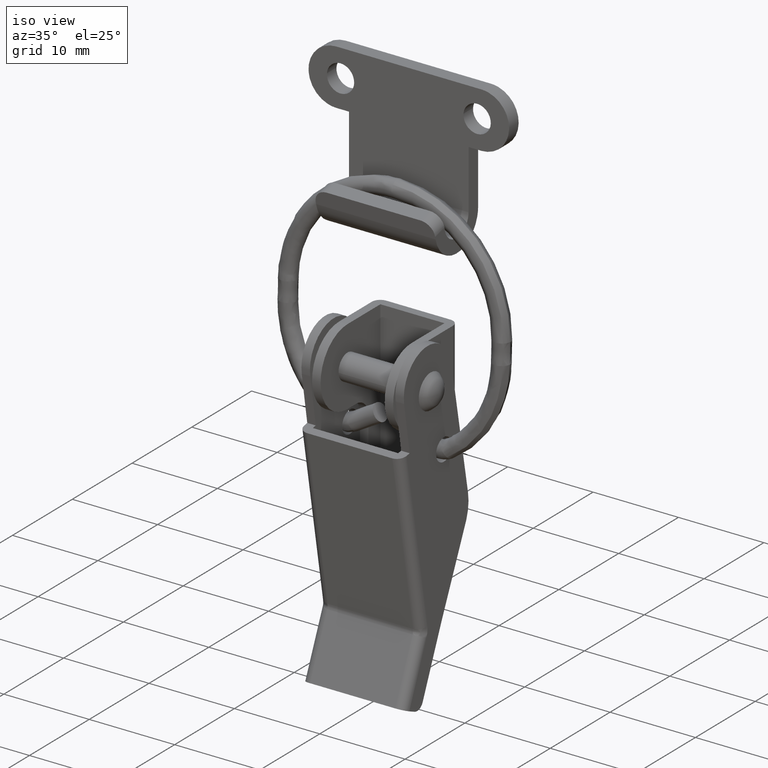
[diagram: clean part render]
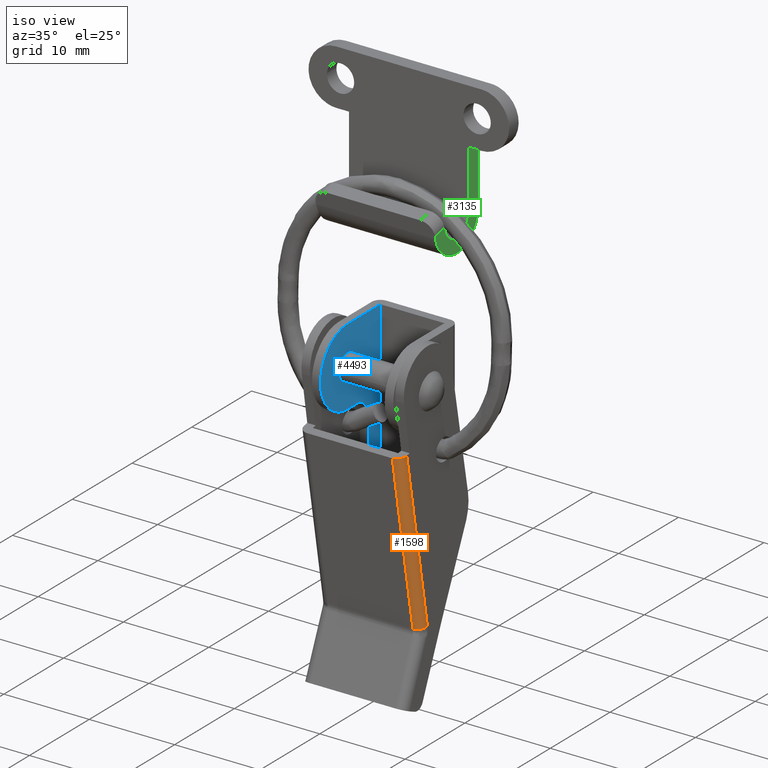
[diagram: same view with three faces highlighted in distinct colors, each labeled with its STEP entity id]
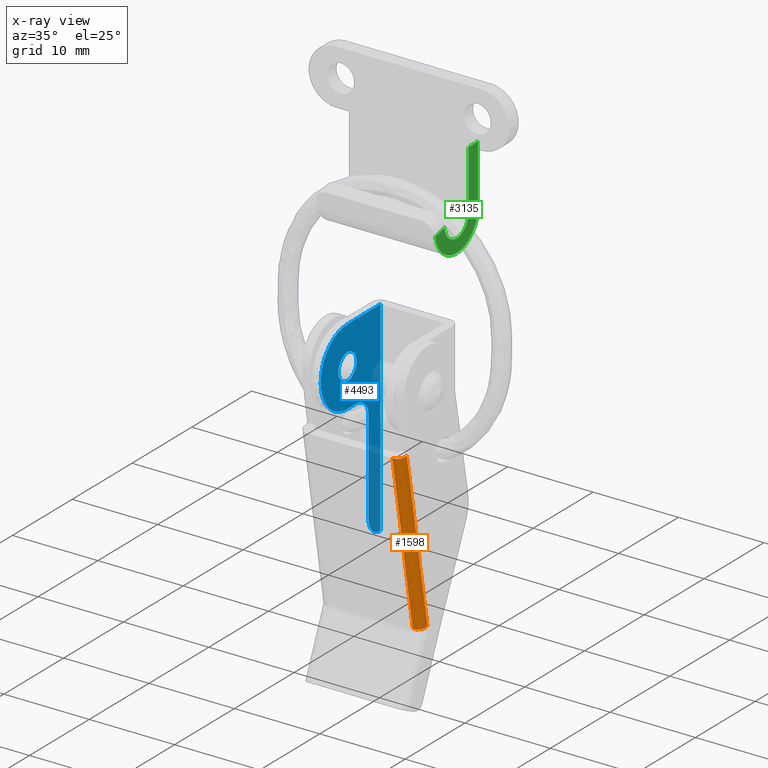
[diagram: x-ray of the same camera — body ghosted, the three highlighted faces saturated]
A machine part, iso view with three faces highlighted in distinct colors.
The next image is the same camera in x-ray (body ghosted, the three faces saturated) — at least one of them is partly hidden behind the body in this view.
Their STEP definitions:

[orange] entity #1598 — the highlighted face is a freeform B-spline surface patch.
#1371=CARTESIAN_POINT('',(5.0,-1.552382318426545,-24.836970145864349));
#1372=VERTEX_POINT('',#1371);
#1464=CARTESIAN_POINT('',(6.0,-0.567851664857188,-24.661757725693050));
#1465=VERTEX_POINT('',#1464);
#1479=CARTESIAN_POINT('',(6.0,-0.567851664857188,-24.661757725693050));
#1480=CARTESIAN_POINT('',(6.0,-1.552382318426544,-24.836970145864385));
#1481=CARTESIAN_POINT('',(5.0,-1.552382318426545,-24.836970145864381));
#1489=(BOUNDED_CURVE()B_SPLINE_CURVE(2,(#1479,#1480,#1481),.UNSPECIFIED.,.F.,.U.)CURVE()GEOMETRIC_REPRESENTATION_ITEM()QUASI_UNIFORM_CURVE()RATIONAL_B_SPLINE_CURVE((1.0,0.707106781186548,1.0))REPRESENTATION_ITEM(''));
#1490=EDGE_CURVE('',#1465,#1372,#1489,.T.);
#1554=CARTESIAN_POINT('',(4.973823051692122,-5.085853067973556,-4.980198930432920));
#1555=CARTESIAN_POINT('',(4.973823051692122,-1.463699741270437,-25.333327884306811));
#1556=CARTESIAN_POINT('',(6.074984800554713,-5.114241945562497,-4.985251169213163));
#1557=CARTESIAN_POINT('',(6.074984800554713,-1.492088618859376,-25.338380123087060));
#1558=CARTESIAN_POINT('',(5.997524479380808,-4.032427518454886,-4.792725600544890));
#1559=CARTESIAN_POINT('',(5.997524479380810,-0.410274191751764,-25.145854554418793));
#1567=(BOUNDED_SURFACE()B_SPLINE_SURFACE(1,2,((#1554,#1556,#1558),(#1555,#1557,#1559)),.UNSPECIFIED.,.F.,.F.,.U.)B_SPLINE_SURFACE_WITH_KNOTS((2,2),(3,3),(0.0,20.672925601742168),(0.0,0.994518632334191),.UNSPECIFIED.)GEOMETRIC_REPRESENTATION_ITEM()RATIONAL_B_SPLINE_SURFACE(((1.0,0.670944223154768,0.996392648609106),(1.0,0.670944223154768,0.996392648609106)))REPRESENTATION_ITEM('')SURFACE());
#1568=CARTESIAN_POINT('',(5.0,-5.0,-5.464568999999901));
#1569=VERTEX_POINT('',#1568);
#1570=CARTESIAN_POINT('',(6.0,-4.013499732734795,-5.300423974807511));
#1571=VERTEX_POINT('',#1570);
#1572=CARTESIAN_POINT('',(5.0,-4.999999999999999,-5.464568999999900));
#1573=CARTESIAN_POINT('',(6.000000000000001,-4.999999999999999,-5.464568999999901));
#1574=CARTESIAN_POINT('',(6.0,-4.013499732734795,-5.300423974807511));
#1582=(BOUNDED_CURVE()B_SPLINE_CURVE(2,(#1572,#1573,#1574),.UNSPECIFIED.,.F.,.U.)CURVE()GEOMETRIC_REPRESENTATION_ITEM()QUASI_UNIFORM_CURVE()RATIONAL_B_SPLINE_CURVE((1.0,0.707106781186548,1.0))REPRESENTATION_ITEM(''));
#1583=EDGE_CURVE('',#1569,#1571,#1582,.T.);
#1584=ORIENTED_EDGE('',*,*,#1583,.F.);
#1585=CARTESIAN_POINT('',(5.0,-1.552382318426545,-24.836970145864349));
#1586=CARTESIAN_POINT('',(5.0,-5.0,-5.464568999999901));
#1587=QUASI_UNIFORM_CURVE('',1,(#1585,#1586),.UNSPECIFIED.,.F.,.U.);
#1588=EDGE_CURVE('',#1372,#1569,#1587,.T.);
#1589=ORIENTED_EDGE('',*,*,#1588,.F.);
#1590=ORIENTED_EDGE('',*,*,#1490,.F.);
#1591=CARTESIAN_POINT('',(6.0,-4.013499732734795,-5.300423974807511));
#1592=CARTESIAN_POINT('',(6.0,-0.567851664857188,-24.661757725693050));
#1593=QUASI_UNIFORM_CURVE('',1,(#1591,#1592),.UNSPECIFIED.,.F.,.U.);
#1594=EDGE_CURVE('',#1571,#1465,#1593,.T.);
#1595=ORIENTED_EDGE('',*,*,#1594,.F.);
#1596=EDGE_LOOP('',(#1584,#1589,#1590,#1595));
#1597=FACE_OUTER_BOUND('',#1596,.T.);
#1598=ADVANCED_FACE('',(#1597),#1567,.T.);

[blue] entity #4493 — the highlighted face is a freeform B-spline surface patch.
#4113=CARTESIAN_POINT('',(-3.750000000000000,0.0,1.499999999999800));
#4114=VERTEX_POINT('',#4113);
#4115=CARTESIAN_POINT('',(-3.750000000000000,-1.495376000583315,0.117688643797308));
#4116=VERTEX_POINT('',#4115);
#4117=CARTESIAN_POINT('',(-3.750000000000000,0.0,1.499999999999800));
#4118=CARTESIAN_POINT('',(-3.750000000000000,-1.386585737104744,1.499999999999800));
#4119=CARTESIAN_POINT('',(-3.750000000000000,-1.495376000583315,0.117688643797308));
#4127=(BOUNDED_CURVE()B_SPLINE_CURVE(2,(#4117,#4118,#4119),.UNSPECIFIED.,.F.,.U.)B_SPLINE_CURVE_WITH_KNOTS((3,3),(0.0,0.236331300585638),.UNSPECIFIED.)CURVE()GEOMETRIC_REPRESENTATION_ITEM()RATIONAL_B_SPLINE_CURVE((1.0,0.723120658660411,0.969723356073462))REPRESENTATION_ITEM(''));
#4128=EDGE_CURVE('',#4114,#4116,#4127,.T.);
#4169=CARTESIAN_POINT('',(-3.750000000000000,1.495376000583315,-0.117688643797308));
#4170=VERTEX_POINT('',#4169);
#4176=CARTESIAN_POINT('',(-3.750000000000000,1.495376000583315,-0.117688643797308));
#4177=CARTESIAN_POINT('',(-3.750000000000000,1.499999999999800,-0.058935160718006));
#4178=CARTESIAN_POINT('',(-3.750000000000000,1.499999999999800,0.0));
#4179=CARTESIAN_POINT('',(-3.750000000000000,1.499999999999800,1.499999999999800));
#4180=CARTESIAN_POINT('',(-3.750000000000000,0.0,1.499999999999800));
#4188=(BOUNDED_CURVE()B_SPLINE_CURVE(2,(#4176,#4177,#4178,#4179,#4180),.UNSPECIFIED.,.F.,.U.)B_SPLINE_CURVE_WITH_KNOTS((3,2,3),(0.736331300585639,0.750000000000000,1.0),.UNSPECIFIED.)CURVE()GEOMETRIC_REPRESENTATION_ITEM()RATIONAL_B_SPLINE_CURVE((0.969723356073462,0.983986122526136,1.0,0.707106781186547,1.0))REPRESENTATION_ITEM(''));
#4189=EDGE_CURVE('',#4170,#4114,#4188,.T.);
#4212=CARTESIAN_POINT('',(-3.750000000000000,0.0,-1.499999999999800));
#4213=VERTEX_POINT('',#4212);
#4214=CARTESIAN_POINT('',(-3.750000000000000,-1.495376000583315,0.117688643797308));
#4215=CARTESIAN_POINT('',(-3.750000000000000,-1.499999999999800,0.058935160718007));
#4216=CARTESIAN_POINT('',(-3.750000000000000,-1.499999999999800,0.0));
#4217=CARTESIAN_POINT('',(-3.750000000000000,-1.499999999999800,-1.499999999999800));
#4218=CARTESIAN_POINT('',(-3.750000000000000,0.0,-1.499999999999800));
#4226=(BOUNDED_CURVE()B_SPLINE_CURVE(2,(#4214,#4215,#4216,#4217,#4218),.UNSPECIFIED.,.F.,.U.)B_SPLINE_CURVE_WITH_KNOTS((3,2,3),(0.236331300585639,0.250000000000000,0.500000000000000),.UNSPECIFIED.)CURVE()GEOMETRIC_REPRESENTATION_ITEM()RATIONAL_B_SPLINE_CURVE((0.969723356073462,0.983986122526136,1.0,0.707106781186547,1.0))REPRESENTATION_ITEM(''));
#4227=EDGE_CURVE('',#4116,#4213,#4226,.T.);
#4229=CARTESIAN_POINT('',(-3.750000000000000,0.0,-1.499999999999800));
#4230=CARTESIAN_POINT('',(-3.750000000000000,1.386585737104751,-1.499999999999801));
#4231=CARTESIAN_POINT('',(-3.750000000000000,1.495376000583315,-0.117688643797308));
#4239=(BOUNDED_CURVE()B_SPLINE_CURVE(2,(#4229,#4230,#4231),.UNSPECIFIED.,.F.,.U.)B_SPLINE_CURVE_WITH_KNOTS((3,3),(0.500000000000000,0.736331300585639),.UNSPECIFIED.)CURVE()GEOMETRIC_REPRESENTATION_ITEM()RATIONAL_B_SPLINE_CURVE((1.0,0.723120658660410,0.969723356073464))REPRESENTATION_ITEM(''));
#4240=EDGE_CURVE('',#4213,#4170,#4239,.T.);
#4403=CARTESIAN_POINT('',(-3.750000000000000,-4.999499980618079,5.698799953483551));
#4404=CARTESIAN_POINT('',(-3.750000000000000,5.999500248838962,5.698799953483551));
#4405=CARTESIAN_POINT('',(-3.750000000000000,-4.999499980618079,-20.698800597213509));
#4406=CARTESIAN_POINT('',(-3.750000000000000,5.999500248838962,-20.698800597213509));
#4407=B_SPLINE_SURFACE_WITH_KNOTS('',1,1,((#4403,#4405),(#4404,#4406)),.UNSPECIFIED.,.F.,.F.,.U.,(2,2),(2,2),(0.0,10.999000229457041),(0.0,26.397600550697060),.UNSPECIFIED.);
#4408=CARTESIAN_POINT('',(-3.750000000000000,0.0,4.500000000000200));
#4409=VERTEX_POINT('',#4408);
#4410=CARTESIAN_POINT('',(-3.750000000000000,-8.266093E-016,-4.500000000000200));
#4411=VERTEX_POINT('',#4410);
#4412=CARTESIAN_POINT('',(-3.750000000000000,0.0,4.500000000000200));
#4413=CARTESIAN_POINT('',(-3.749999999999999,-4.500000000000201,4.500000000000201));
#4414=CARTESIAN_POINT('',(-3.750000000000000,-4.500000000000200,0.0));
#4415=CARTESIAN_POINT('',(-3.749999999999999,-4.500000000000201,-4.500000000000201));
#4416=CARTESIAN_POINT('',(-3.750000000000000,0.0,-4.500000000000200));
#4424=(BOUNDED_CURVE()B_SPLINE_CURVE(2,(#4412,#4413,#4414,#4415,#4416),.UNSPECIFIED.,.F.,.U.)B_SPLINE_CURVE_WITH_KNOTS((3,2,3),(0.0,0.500000000000000,1.0),.UNSPECIFIED.)CURVE()GEOMETRIC_REPRESENTATION_ITEM()RATIONAL_B_SPLINE_CURVE((1.0,0.707106781186548,1.0,0.707106781186548,1.0))REPRESENTATION_ITEM(''));
#4425=EDGE_CURVE('',#4409,#4411,#4424,.T.);
#4426=ORIENTED_EDGE('',*,*,#4425,.T.);
#4427=CARTESIAN_POINT('',(-3.750000000000000,1.499997000000000,-4.500000000000200));
#4428=VERTEX_POINT('',#4427);
#4429=CARTESIAN_POINT('',(-3.750000000000000,1.499997000000000,-4.500000000000200));
#4430=CARTESIAN_POINT('',(-3.750000000000000,-8.266093E-016,-4.500000000000200));
#4431=QUASI_UNIFORM_CURVE('',1,(#4429,#4430),.UNSPECIFIED.,.F.,.U.);
#4432=EDGE_CURVE('',#4428,#4411,#4431,.T.);
#4433=ORIENTED_EDGE('',*,*,#4432,.F.);
#4434=CARTESIAN_POINT('',(-3.750000000000000,3.499997000000000,-6.500000000000200));
#4435=VERTEX_POINT('',#4434);
#4436=CARTESIAN_POINT('',(-3.750000000000000,3.499997000000001,-6.500000000000200));
#4437=CARTESIAN_POINT('',(-3.749999999999999,3.499997000000000,-4.500000000000201));
#4438=CARTESIAN_POINT('',(-3.750000000000000,1.499997000000000,-4.500000000000200));
#4446=(BOUNDED_CURVE()B_SPLINE_CURVE(2,(#4436,#4437,#4438),.UNSPECIFIED.,.F.,.U.)CURVE()GEOMETRIC_REPRESENTATION_ITEM()QUASI_UNIFORM_CURVE()RATIONAL_B_SPLINE_CURVE((1.0,0.707106781186548,1.0))REPRESENTATION_ITEM(''));
#4447=EDGE_CURVE('',#4435,#4428,#4446,.T.);
#4448=ORIENTED_EDGE('',*,*,#4447,.F.);
#4449=CARTESIAN_POINT('',(-3.750000000000000,3.499997000000000,-17.500000000000000));
#4450=VERTEX_POINT('',#4449);
#4451=CARTESIAN_POINT('',(-3.750000000000000,3.499997000000000,-17.500000000000000));
#4452=CARTESIAN_POINT('',(-3.750000000000000,3.499997000000000,-6.500000000000200));
#4453=QUASI_UNIFORM_CURVE('',1,(#4451,#4452),.UNSPECIFIED.,.F.,.U.);
#4454=EDGE_CURVE('',#4450,#4435,#4453,.T.);
#4455=ORIENTED_EDGE('',*,*,#4454,.F.);
#4456=CARTESIAN_POINT('',(-3.750000000000000,5.500000000000000,-19.500000000000000));
#4457=VERTEX_POINT('',#4456);
#4458=CARTESIAN_POINT('',(-3.750000000000000,3.499997000000001,-17.500000000000000));
#4459=CARTESIAN_POINT('',(-3.750000000000000,3.499997000000001,-18.328428003425994));
#4460=CARTESIAN_POINT('',(-3.750000000000000,4.085784498287474,-18.914214623032869));
#4461=CARTESIAN_POINT('',(-3.750000000000000,4.671571996574949,-19.500001242639751));
#4462=CARTESIAN_POINT('',(-3.750000000000000,5.500000000000000,-19.500000000000000));
#4470=(BOUNDED_CURVE()B_SPLINE_CURVE(2,(#4458,#4459,#4460,#4461,#4462),.UNSPECIFIED.,.F.,.U.)B_SPLINE_CURVE_WITH_KNOTS((3,2,3),(0.0,0.500000000000000,1.0),.UNSPECIFIED.)CURVE()GEOMETRIC_REPRESENTATION_ITEM()RATIONAL_B_SPLINE_CURVE((1.0,0.923879389004935,1.0,0.923879389004935,1.0))REPRESENTATION_ITEM(''));
#4471=EDGE_CURVE('',#4450,#4457,#4470,.T.);
#4472=ORIENTED_EDGE('',*,*,#4471,.T.);
#4473=CARTESIAN_POINT('',(-3.750000000000000,5.500000000000000,4.500000000000200));
#4474=VERTEX_POINT('',#4473);
#4475=CARTESIAN_POINT('',(-3.750000000000000,5.500000000000000,4.500000000000200));
#4476=CARTESIAN_POINT('',(-3.750000000000000,5.500000000000000,-19.500000000000000));
#4477=QUASI_UNIFORM_CURVE('',1,(#4475,#4476),.UNSPECIFIED.,.F.,.U.);
#4478=EDGE_CURVE('',#4474,#4457,#4477,.T.);
#4479=ORIENTED_EDGE('',*,*,#4478,.F.);
#4480=CARTESIAN_POINT('',(-3.750000000000000,0.0,4.500000000000200));
#4481=CARTESIAN_POINT('',(-3.750000000000000,5.500000000000000,4.500000000000200));
#4482=QUASI_UNIFORM_CURVE('',1,(#4480,#4481),.UNSPECIFIED.,.F.,.U.);
#4483=EDGE_CURVE('',#4409,#4474,#4482,.T.);
#4484=ORIENTED_EDGE('',*,*,#4483,.F.);
#4485=EDGE_LOOP('',(#4426,#4433,#4448,#4455,#4472,#4479,#4484));
#4486=FACE_OUTER_BOUND('',#4485,.T.);
#4487=ORIENTED_EDGE('',*,*,#4240,.F.);
#4488=ORIENTED_EDGE('',*,*,#4227,.F.);
#4489=ORIENTED_EDGE('',*,*,#4128,.F.);
#4490=ORIENTED_EDGE('',*,*,#4189,.F.);
#4491=EDGE_LOOP('',(#4487,#4488,#4489,#4490));
#4492=FACE_BOUND('',#4491,.T.);
#4493=ADVANCED_FACE('',(#4486,#4492),#4407,.F.);

[green] entity #3135 — the highlighted face is a freeform B-spline surface patch.
#2878=CARTESIAN_POINT('',(7.0,0.867237727173300,17.282920061436151));
#2879=VERTEX_POINT('',#2878);
#2900=CARTESIAN_POINT('',(7.0,-0.678520672159556,16.862136602841002));
#2901=VERTEX_POINT('',#2900);
#2915=CARTESIAN_POINT('',(7.0,0.867237727173300,17.282920061436151));
#2916=CARTESIAN_POINT('',(7.0,-0.678520672159556,16.862136602841002));
#2917=QUASI_UNIFORM_CURVE('',1,(#2915,#2916),.UNSPECIFIED.,.F.,.U.);
#2918=EDGE_CURVE('',#2879,#2901,#2917,.T.);
#3060=CARTESIAN_POINT('',(7.0,-1.037087765820560,13.225718279703070));
#3061=CARTESIAN_POINT('',(7.0,6.858567286203933,13.225718279703070));
#3062=CARTESIAN_POINT('',(7.0,-1.037087765820560,24.774466067153490));
#3063=CARTESIAN_POINT('',(7.0,6.858567286203933,24.774466067153490));
#3064=B_SPLINE_SURFACE_WITH_KNOTS('',1,1,((#3060,#3062),(#3061,#3063)),.UNSPECIFIED.,.F.,.F.,.U.,(2,2),(2,2),(0.0,7.895655052024495),(0.0,11.548747787450420),.UNSPECIFIED.);
#3065=CARTESIAN_POINT('',(7.0,0.946350607856515,16.921881789243798));
#3066=VERTEX_POINT('',#3065);
#3067=CARTESIAN_POINT('',(7.0,0.946350607856515,16.921881789243798));
#3068=CARTESIAN_POINT('',(7.0,0.867237727173300,17.282920061436151));
#3069=QUASI_UNIFORM_CURVE('',1,(#3067,#3068),.UNSPECIFIED.,.F.,.U.);
#3070=EDGE_CURVE('',#3066,#2879,#3069,.T.);
#3071=ORIENTED_EDGE('',*,*,#3070,.T.);
#3072=ORIENTED_EDGE('',*,*,#2918,.T.);
#3073=CARTESIAN_POINT('',(7.0,-0.616562000000016,16.579391000000101));
#3074=VERTEX_POINT('',#3073);
#3075=CARTESIAN_POINT('',(7.0,-0.678520672159556,16.862136602841002));
#3076=CARTESIAN_POINT('',(7.0,-0.616562000000016,16.579391000000101));
#3077=QUASI_UNIFORM_CURVE('',1,(#3075,#3076),.UNSPECIFIED.,.F.,.U.);
#3078=EDGE_CURVE('',#2901,#3074,#3077,.T.);
#3079=ORIENTED_EDGE('',*,*,#3078,.T.);
#3080=CARTESIAN_POINT('',(7.0,6.499993999999910,17.349991000000198));
#3081=VERTEX_POINT('',#3080);
#3082=CARTESIAN_POINT('',(7.0,-0.616562000000016,16.579391000000101));
#3083=CARTESIAN_POINT('',(6.999999999999999,0.075100051403140,13.423060129761931));
#3084=CARTESIAN_POINT('',(7.0,3.287547057145938,13.770912611021931));
#3085=CARTESIAN_POINT('',(6.999999999999999,6.499994062888738,14.118765092281935));
#3086=CARTESIAN_POINT('',(7.0,6.499993999999910,17.349991000000198));
#3094=(BOUNDED_CURVE()B_SPLINE_CURVE(2,(#3082,#3083,#3084,#3085,#3086),.UNSPECIFIED.,.F.,.U.)B_SPLINE_CURVE_WITH_KNOTS((3,2,3),(0.0,0.500000000000000,1.0),.UNSPECIFIED.)CURVE()GEOMETRIC_REPRESENTATION_ITEM()RATIONAL_B_SPLINE_CURVE((1.0,0.744195353131182,1.0,0.744195353131182,1.0))REPRESENTATION_ITEM(''));
#3095=EDGE_CURVE('',#3074,#3081,#3094,.T.);
#3096=ORIENTED_EDGE('',*,*,#3095,.T.);
#3097=CARTESIAN_POINT('',(7.0,6.500000000000000,24.250000000000000));
#3098=VERTEX_POINT('',#3097);
#3099=CARTESIAN_POINT('',(7.0,6.499993999999910,17.349991000000198));
#3100=CARTESIAN_POINT('',(7.0,6.500000000000000,24.250000000000000));
#3101=QUASI_UNIFORM_CURVE('',1,(#3099,#3100),.UNSPECIFIED.,.F.,.U.);
#3102=EDGE_CURVE('',#3081,#3098,#3101,.T.);
#3103=ORIENTED_EDGE('',*,*,#3102,.T.);
#3104=CARTESIAN_POINT('',(7.0,4.899994000000000,24.250000000000000));
#3105=VERTEX_POINT('',#3104);
#3106=CARTESIAN_POINT('',(7.0,6.500000000000000,24.250000000000000));
#3107=CARTESIAN_POINT('',(7.0,4.899994000000000,24.250000000000000));
#3108=QUASI_UNIFORM_CURVE('',1,(#3106,#3107),.UNSPECIFIED.,.F.,.U.);
#3109=EDGE_CURVE('',#3098,#3105,#3108,.T.);
#3110=ORIENTED_EDGE('',*,*,#3109,.T.);
#3111=CARTESIAN_POINT('',(7.0,4.899994000000000,17.349991000000198));
#3112=VERTEX_POINT('',#3111);
#3113=CARTESIAN_POINT('',(7.0,4.899994000000000,24.250000000000000));
#3114=CARTESIAN_POINT('',(7.0,4.899994000000000,17.349991000000198));
#3115=QUASI_UNIFORM_CURVE('',1,(#3113,#3114),.UNSPECIFIED.,.F.,.U.);
#3116=EDGE_CURVE('',#3105,#3112,#3115,.T.);
#3117=ORIENTED_EDGE('',*,*,#3116,.T.);
#3118=CARTESIAN_POINT('',(7.0,0.946350607856515,16.921881789243798));
#3119=CARTESIAN_POINT('',(7.0,1.330605694483972,15.168363313056719));
#3120=CARTESIAN_POINT('',(7.0,3.115299847241938,15.361613925061100));
#3121=CARTESIAN_POINT('',(7.0,4.899993999999906,15.554864537065477));
#3122=CARTESIAN_POINT('',(7.0,4.899994000000000,17.349991000000198));
#3130=(BOUNDED_CURVE()B_SPLINE_CURVE(2,(#3118,#3119,#3120,#3121,#3122),.UNSPECIFIED.,.F.,.U.)B_SPLINE_CURVE_WITH_KNOTS((3,2,3),(0.0,0.500000000000000,1.0),.UNSPECIFIED.)CURVE()GEOMETRIC_REPRESENTATION_ITEM()RATIONAL_B_SPLINE_CURVE((1.0,0.744195177228735,1.0,0.744195177228735,1.0))REPRESENTATION_ITEM(''));
#3131=EDGE_CURVE('',#3066,#3112,#3130,.T.);
#3132=ORIENTED_EDGE('',*,*,#3131,.F.);
#3133=EDGE_LOOP('',(#3071,#3072,#3079,#3096,#3103,#3110,#3117,#3132));
#3134=FACE_OUTER_BOUND('',#3133,.T.);
#3135=ADVANCED_FACE('',(#3134),#3064,.T.);